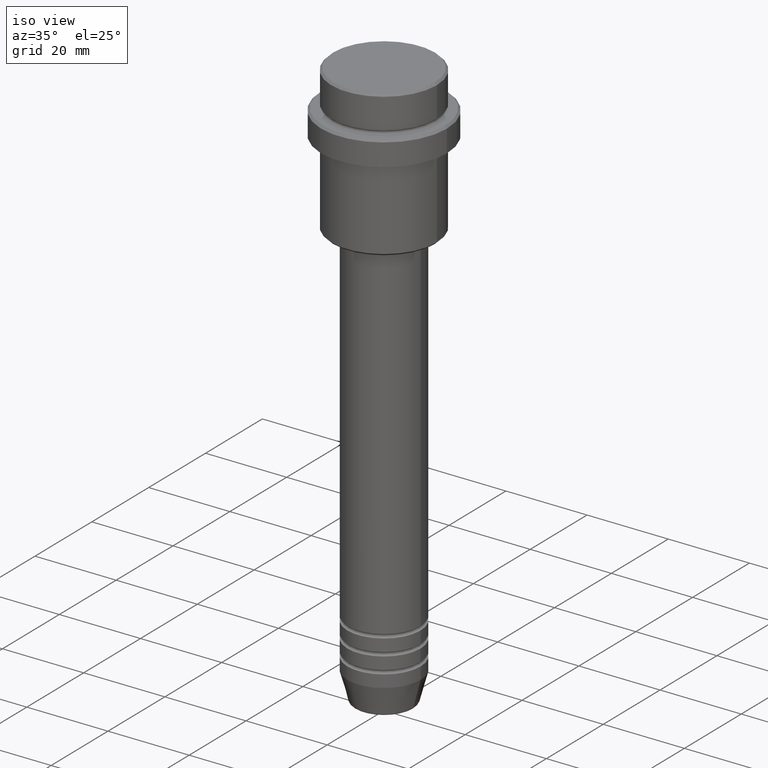
[diagram: clean part render]
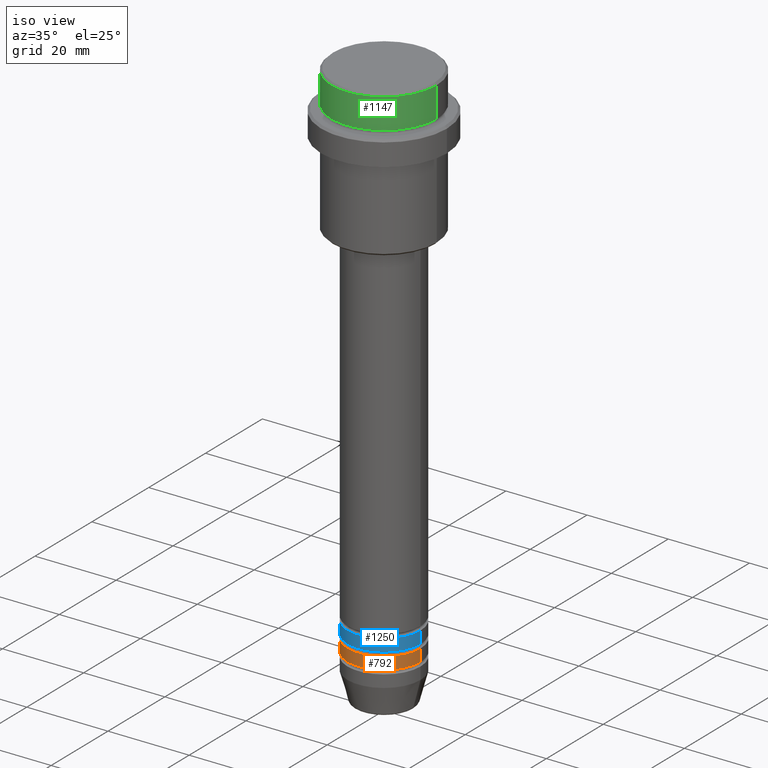
[diagram: same view with three faces highlighted in distinct colors, each labeled with its STEP entity id]
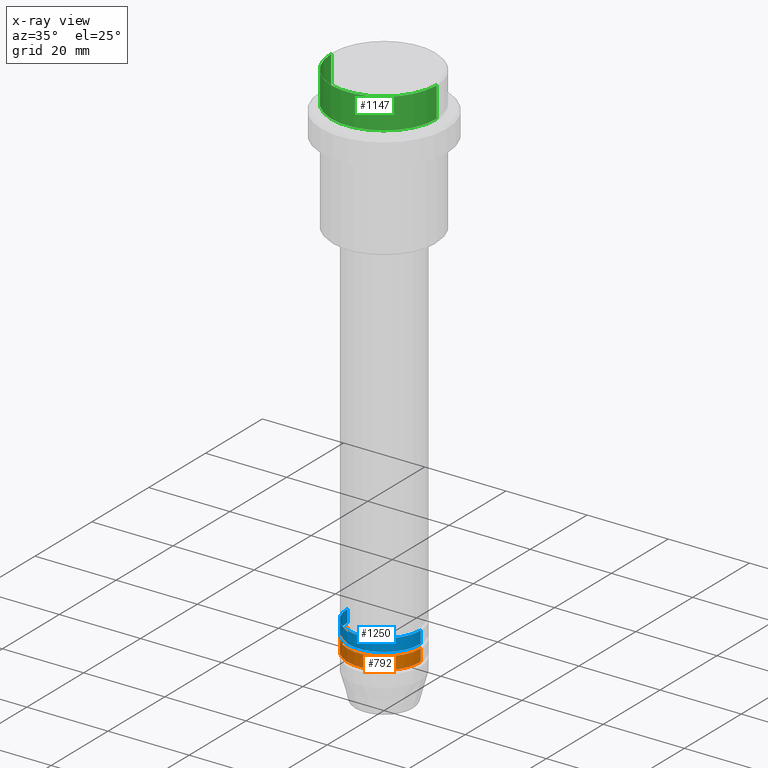
[diagram: x-ray of the same camera — body ghosted, the three highlighted faces saturated]
A machine part, iso view with three faces highlighted in distinct colors.
The next image is the same camera in x-ray (body ghosted, the three faces saturated) — at least one of them is partly hidden behind the body in this view.
Their STEP definitions:

[orange] entity #792 — the highlighted cylindrical surface (partial cylindrical patch) has radius 9 mm, axis along (-0, -0, 1).
#43 = CARTESIAN_POINT ( 'NONE',  ( 0.000000000000000000, 0.000000000000000000, -126.9999999999998579 ) ) ;
#85 = CYLINDRICAL_SURFACE ( 'NONE', #1239, 9.000000000000000000 ) ;
#98 = VERTEX_POINT ( 'NONE', #345 ) ;
#125 = CARTESIAN_POINT ( 'NONE',  ( -9.000000000000000000, 1.102182119232617714E-15, 0.000000000000000000 ) ) ;
#137 = EDGE_CURVE ( 'NONE', #697, #98, #242, .T. ) ;
#242 = LINE ( 'NONE', #1113, #1033 ) ;
#278 = CIRCLE ( 'NONE', #1151, 9.000000000000000000 ) ;
#345 = CARTESIAN_POINT ( 'NONE',  ( 9.000000000000000000, 0.000000000000000000, -126.9999999999998579 ) ) ;
#360 = DIRECTION ( 'NONE',  ( -0.000000000000000000, -0.000000000000000000, 1.000000000000000000 ) ) ;
#380 = DIRECTION ( 'NONE',  ( -0.000000000000000000, -0.000000000000000000, 1.000000000000000000 ) ) ;
#414 = DIRECTION ( 'NONE',  ( 1.000000000000000000, 0.000000000000000000, 0.000000000000000000 ) ) ;
#432 = CIRCLE ( 'NONE', #640, 9.000000000000000000 ) ;
#450 = ORIENTED_EDGE ( 'NONE', *, *, #1208, .F. ) ;
#472 = ORIENTED_EDGE ( 'NONE', *, *, #532, .F. ) ;
#490 = ORIENTED_EDGE ( 'NONE', *, *, #1313, .T. ) ;
#532 = EDGE_CURVE ( 'NONE', #588, #806, #1102, .T. ) ;
#538 = EDGE_LOOP ( 'NONE', ( #472, #490, #1162, #450 ) ) ;
#588 = VERTEX_POINT ( 'NONE', #982 ) ;
#640 = AXIS2_PLACEMENT_3D ( 'NONE', #1273, #1367, #1363 ) ;
#697 = VERTEX_POINT ( 'NONE', #921 ) ;
#719 = DIRECTION ( 'NONE',  ( 1.000000000000000000, 0.000000000000000000, 0.000000000000000000 ) ) ;
#756 = FACE_OUTER_BOUND ( 'NONE', #538, .T. ) ;
#792 = ADVANCED_FACE ( 'NONE', ( #756 ), #85, .T. ) ;
#799 = DIRECTION ( 'NONE',  ( -0.000000000000000000, -0.000000000000000000, 1.000000000000000000 ) ) ;
#806 = VERTEX_POINT ( 'NONE', #1277 ) ;
#921 = CARTESIAN_POINT ( 'NONE',  ( 9.000000000000000000, 0.000000000000000000, -129.9999999999998579 ) ) ;
#982 = CARTESIAN_POINT ( 'NONE',  ( -9.000000000000000000, 1.102182119232617714E-15, -129.9999999999998579 ) ) ;
#1033 = VECTOR ( 'NONE', #360, 1000.000000000000000 ) ;
#1071 = CARTESIAN_POINT ( 'NONE',  ( 0.000000000000000000, 0.000000000000000000, 0.000000000000000000 ) ) ;
#1102 = LINE ( 'NONE', #125, #1304 ) ;
#1113 = CARTESIAN_POINT ( 'NONE',  ( 9.000000000000000000, 0.000000000000000000, 0.000000000000000000 ) ) ;
#1151 = AXIS2_PLACEMENT_3D ( 'NONE', #43, #380, #719 ) ;
#1162 = ORIENTED_EDGE ( 'NONE', *, *, #137, .T. ) ;
#1208 = EDGE_CURVE ( 'NONE', #806, #98, #278, .T. ) ;
#1239 = AXIS2_PLACEMENT_3D ( 'NONE', #1071, #1403, #414 ) ;
#1273 = CARTESIAN_POINT ( 'NONE',  ( 0.000000000000000000, 0.000000000000000000, -129.9999999999998579 ) ) ;
#1277 = CARTESIAN_POINT ( 'NONE',  ( -9.000000000000000000, 1.102182119232617714E-15, -126.9999999999998579 ) ) ;
#1304 = VECTOR ( 'NONE', #799, 1000.000000000000000 ) ;
#1313 = EDGE_CURVE ( 'NONE', #588, #697, #432, .T. ) ;
#1363 = DIRECTION ( 'NONE',  ( 1.000000000000000000, 0.000000000000000000, 0.000000000000000000 ) ) ;
#1367 = DIRECTION ( 'NONE',  ( -0.000000000000000000, -0.000000000000000000, 1.000000000000000000 ) ) ;
#1403 = DIRECTION ( 'NONE',  ( -0.000000000000000000, -0.000000000000000000, 1.000000000000000000 ) ) ;

[blue] entity #1250 — the highlighted cylindrical surface (partial cylindrical patch) has radius 9 mm, axis along (-0, -0, 1).
#5 = CARTESIAN_POINT ( 'NONE',  ( 9.000000000000000000, 0.000000000000000000, -125.9999999999998863 ) ) ;
#56 = AXIS2_PLACEMENT_3D ( 'NONE', #1233, #1030, #391 ) ;
#59 = CARTESIAN_POINT ( 'NONE',  ( 9.000000000000000000, 0.000000000000000000, -122.9999999999998721 ) ) ;
#163 = CYLINDRICAL_SURFACE ( 'NONE', #56, 9.000000000000000000 ) ;
#191 = VERTEX_POINT ( 'NONE', #1203 ) ;
#206 = EDGE_CURVE ( 'NONE', #191, #1200, #818, .T. ) ;
#214 = EDGE_CURVE ( 'NONE', #968, #191, #1232, .T. ) ;
#238 = CARTESIAN_POINT ( 'NONE',  ( -9.000000000000000000, 1.102182119232617714E-15, -125.9999999999998863 ) ) ;
#267 = CARTESIAN_POINT ( 'NONE',  ( -9.000000000000000000, 1.102182119232617714E-15, 0.000000000000000000 ) ) ;
#284 = EDGE_CURVE ( 'NONE', #513, #1200, #1146, .T. ) ;
#306 = DIRECTION ( 'NONE',  ( -0.000000000000000000, -0.000000000000000000, 1.000000000000000000 ) ) ;
#308 = ORIENTED_EDGE ( 'NONE', *, *, #206, .F. ) ;
#319 = VECTOR ( 'NONE', #803, 1000.000000000000000 ) ;
#361 = ORIENTED_EDGE ( 'NONE', *, *, #214, .F. ) ;
#367 = CIRCLE ( 'NONE', #1124, 9.000000000000000000 ) ;
#379 = DIRECTION ( 'NONE',  ( -0.000000000000000000, -0.000000000000000000, 1.000000000000000000 ) ) ;
#391 = DIRECTION ( 'NONE',  ( 1.000000000000000000, 0.000000000000000000, 0.000000000000000000 ) ) ;
#421 = DIRECTION ( 'NONE',  ( -0.000000000000000000, -0.000000000000000000, 1.000000000000000000 ) ) ;
#465 = EDGE_CURVE ( 'NONE', #968, #513, #367, .T. ) ;
#513 = VERTEX_POINT ( 'NONE', #5 ) ;
#527 = CARTESIAN_POINT ( 'NONE',  ( 0.000000000000000000, 0.000000000000000000, -125.9999999999998863 ) ) ;
#608 = FACE_OUTER_BOUND ( 'NONE', #1134, .T. ) ;
#633 = ORIENTED_EDGE ( 'NONE', *, *, #284, .T. ) ;
#684 = VECTOR ( 'NONE', #306, 1000.000000000000000 ) ;
#699 = CARTESIAN_POINT ( 'NONE',  ( 0.000000000000000000, 0.000000000000000000, -122.9999999999998721 ) ) ;
#729 = CARTESIAN_POINT ( 'NONE',  ( 9.000000000000000000, 0.000000000000000000, 0.000000000000000000 ) ) ;
#731 = AXIS2_PLACEMENT_3D ( 'NONE', #699, #379, #1327 ) ;
#803 = DIRECTION ( 'NONE',  ( -0.000000000000000000, -0.000000000000000000, 1.000000000000000000 ) ) ;
#818 = CIRCLE ( 'NONE', #731, 9.000000000000000000 ) ;
#968 = VERTEX_POINT ( 'NONE', #238 ) ;
#1030 = DIRECTION ( 'NONE',  ( -0.000000000000000000, -0.000000000000000000, 1.000000000000000000 ) ) ;
#1124 = AXIS2_PLACEMENT_3D ( 'NONE', #527, #421, #1182 ) ;
#1134 = EDGE_LOOP ( 'NONE', ( #361, #1234, #633, #308 ) ) ;
#1146 = LINE ( 'NONE', #729, #684 ) ;
#1182 = DIRECTION ( 'NONE',  ( 1.000000000000000000, 0.000000000000000000, 0.000000000000000000 ) ) ;
#1200 = VERTEX_POINT ( 'NONE', #59 ) ;
#1203 = CARTESIAN_POINT ( 'NONE',  ( -9.000000000000000000, 1.102182119232617714E-15, -122.9999999999998721 ) ) ;
#1232 = LINE ( 'NONE', #267, #319 ) ;
#1233 = CARTESIAN_POINT ( 'NONE',  ( 0.000000000000000000, 0.000000000000000000, 0.000000000000000000 ) ) ;
#1234 = ORIENTED_EDGE ( 'NONE', *, *, #465, .T. ) ;
#1250 = ADVANCED_FACE ( 'NONE', ( #608 ), #163, .T. ) ;
#1327 = DIRECTION ( 'NONE',  ( 1.000000000000000000, 0.000000000000000000, 0.000000000000000000 ) ) ;

[green] entity #1147 — the highlighted cylindrical surface (partial cylindrical patch) has radius 13 mm, axis along (-0, -0, 1).
#50 = CYLINDRICAL_SURFACE ( 'NONE', #200, 12.99999999999999822 ) ;
#82 = CARTESIAN_POINT ( 'NONE',  ( -12.99999999999999822, 1.592040838891558898E-15, 0.000000000000000000 ) ) ;
#175 = ORIENTED_EDGE ( 'NONE', *, *, #399, .T. ) ;
#187 = DIRECTION ( 'NONE',  ( 0.000000000000000000, 0.000000000000000000, -1.000000000000000000 ) ) ;
#192 = CARTESIAN_POINT ( 'NONE',  ( -12.99999999999999822, 1.592040838891558898E-15, -7.999999999999998224 ) ) ;
#200 = AXIS2_PLACEMENT_3D ( 'NONE', #805, #710, #1247 ) ;
#326 = VERTEX_POINT ( 'NONE', #1362 ) ;
#337 = VERTEX_POINT ( 'NONE', #929 ) ;
#347 = EDGE_CURVE ( 'NONE', #337, #326, #474, .T. ) ;
#369 = ORIENTED_EDGE ( 'NONE', *, *, #458, .F. ) ;
#399 = EDGE_CURVE ( 'NONE', #925, #434, #947, .T. ) ;
#417 = DIRECTION ( 'NONE',  ( -0.000000000000000000, -0.000000000000000000, 1.000000000000000000 ) ) ;
#434 = VERTEX_POINT ( 'NONE', #1084 ) ;
#453 = AXIS2_PLACEMENT_3D ( 'NONE', #1159, #187, #1133 ) ;
#458 = EDGE_CURVE ( 'NONE', #925, #326, #751, .T. ) ;
#474 = CIRCLE ( 'NONE', #453, 12.99999999999999822 ) ;
#557 = DIRECTION ( 'NONE',  ( -0.000000000000000000, -0.000000000000000000, 1.000000000000000000 ) ) ;
#663 = CARTESIAN_POINT ( 'NONE',  ( 0.000000000000000000, 0.000000000000000000, -7.999999999999998224 ) ) ;
#664 = VECTOR ( 'NONE', #417, 1000.000000000000000 ) ;
#710 = DIRECTION ( 'NONE',  ( -0.000000000000000000, -0.000000000000000000, 1.000000000000000000 ) ) ;
#751 = LINE ( 'NONE', #82, #973 ) ;
#762 = DIRECTION ( 'NONE',  ( 1.000000000000000000, 0.000000000000000000, 0.000000000000000000 ) ) ;
#805 = CARTESIAN_POINT ( 'NONE',  ( 0.000000000000000000, 0.000000000000000000, 0.000000000000000000 ) ) ;
#835 = LINE ( 'NONE', #1044, #664 ) ;
#854 = DIRECTION ( 'NONE',  ( -0.000000000000000000, -0.000000000000000000, 1.000000000000000000 ) ) ;
#888 = AXIS2_PLACEMENT_3D ( 'NONE', #663, #854, #762 ) ;
#925 = VERTEX_POINT ( 'NONE', #192 ) ;
#929 = CARTESIAN_POINT ( 'NONE',  ( 12.99999999999999822, 0.000000000000000000, -0.4999999999999900080 ) ) ;
#947 = CIRCLE ( 'NONE', #888, 12.99999999999999822 ) ;
#973 = VECTOR ( 'NONE', #557, 1000.000000000000000 ) ;
#1044 = CARTESIAN_POINT ( 'NONE',  ( 12.99999999999999822, 0.000000000000000000, 0.000000000000000000 ) ) ;
#1045 = EDGE_LOOP ( 'NONE', ( #369, #175, #1305, #1409 ) ) ;
#1084 = CARTESIAN_POINT ( 'NONE',  ( 12.99999999999999822, 0.000000000000000000, -7.999999999999998224 ) ) ;
#1133 = DIRECTION ( 'NONE',  ( 1.000000000000000000, 0.000000000000000000, 0.000000000000000000 ) ) ;
#1147 = ADVANCED_FACE ( 'NONE', ( #1329 ), #50, .T. ) ;
#1159 = CARTESIAN_POINT ( 'NONE',  ( 0.000000000000000000, 0.000000000000000000, -0.4999999999999900080 ) ) ;
#1247 = DIRECTION ( 'NONE',  ( 1.000000000000000000, 0.000000000000000000, 0.000000000000000000 ) ) ;
#1291 = EDGE_CURVE ( 'NONE', #434, #337, #835, .T. ) ;
#1305 = ORIENTED_EDGE ( 'NONE', *, *, #1291, .T. ) ;
#1329 = FACE_OUTER_BOUND ( 'NONE', #1045, .T. ) ;
#1362 = CARTESIAN_POINT ( 'NONE',  ( -12.99999999999999822, 1.592040838891558898E-15, -0.4999999999999900080 ) ) ;
#1409 = ORIENTED_EDGE ( 'NONE', *, *, #347, .T. ) ;